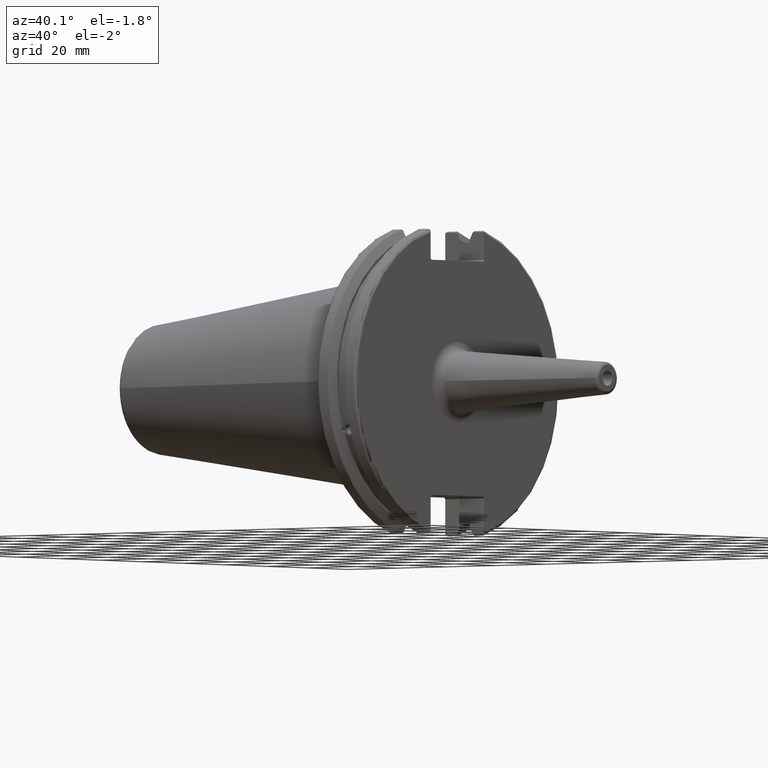
[diagram: clean part render]
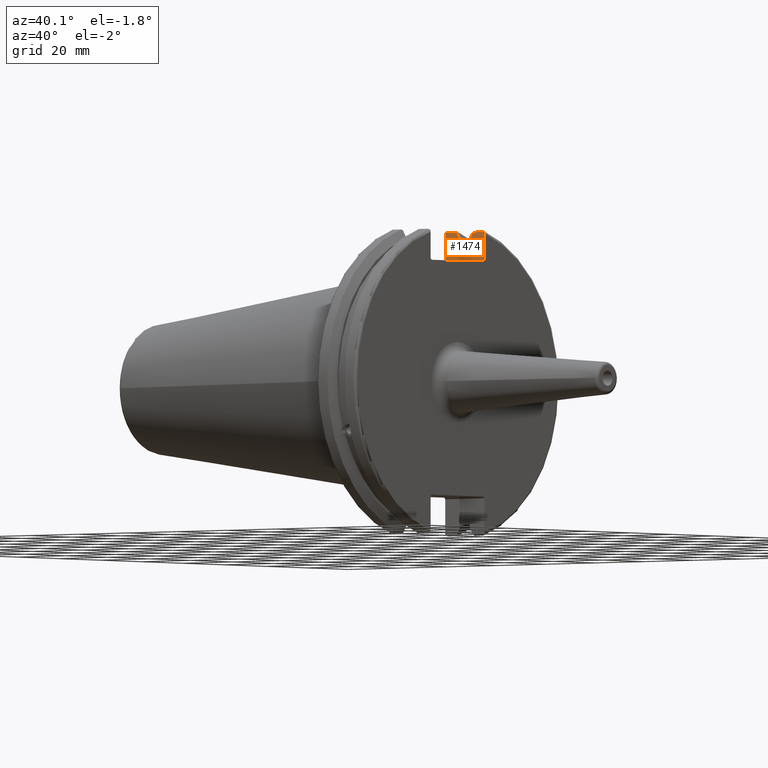
[diagram: same view with one face highlighted and labeled with its STEP entity id]
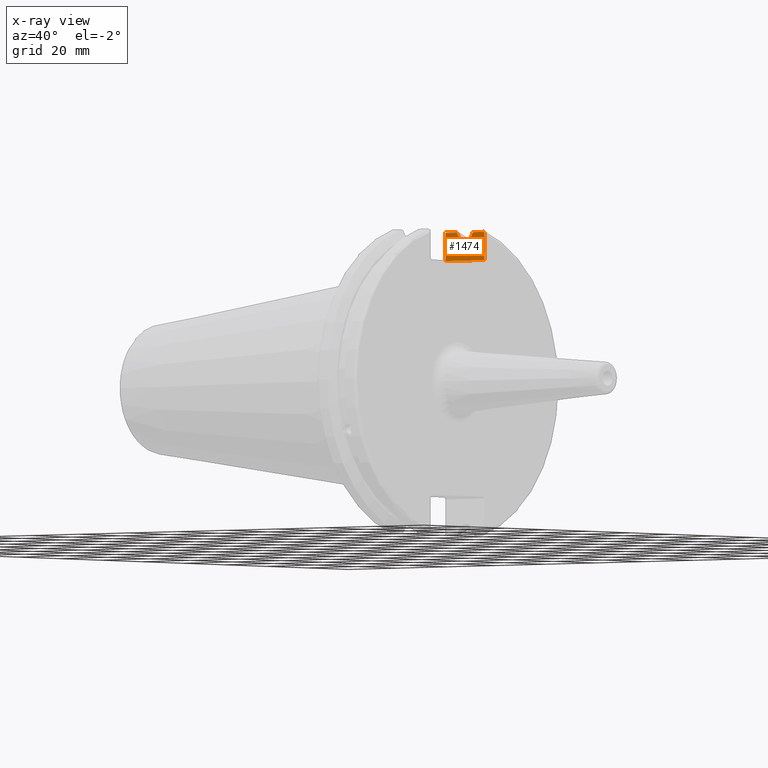
[diagram: x-ray of the same camera — body ghosted, the highlighted face saturated]
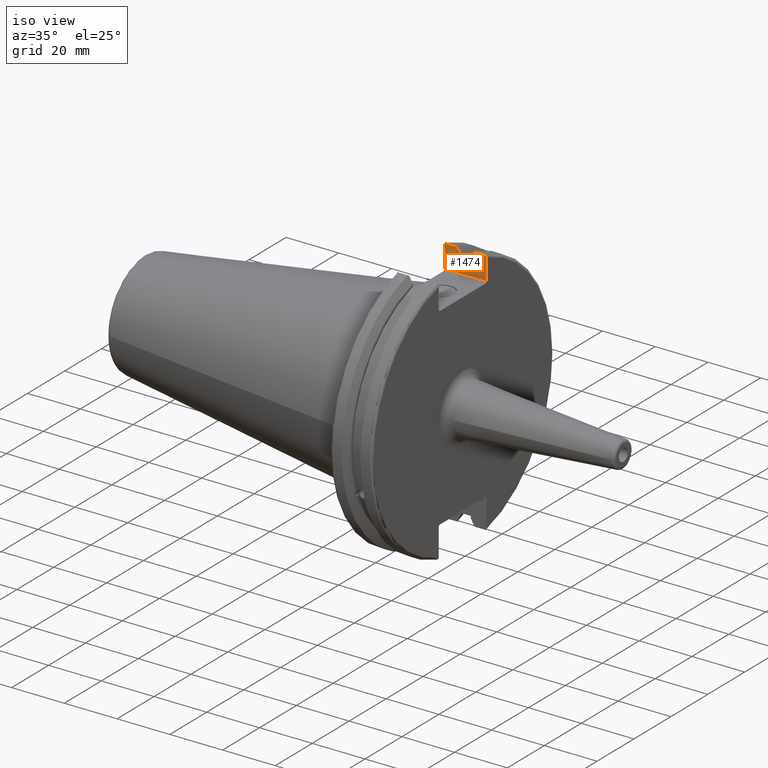
[diagram: same view with one face highlighted and labeled with its STEP entity id]
A machine part, auxiliary view. The second image highlights one B-rep face of the part: STEP entity #1474.
The next image is the same camera in x-ray: the body ghosted, the highlighted face saturated — about 0% of this face is hidden behind the body in this view.
A second angle (iso view) of the same face is appended — the face is thin or edge-on in the first view.
In plain terms, the highlighted planar face has unit normal (0, 1, 0).
Its self-contained STEP definition (entity closure, byte-faithful):
#22=(
BOUNDED_CURVE()
B_SPLINE_CURVE(2,(#2657,#2658,#2659),.UNSPECIFIED.,.F.,.F.)
B_SPLINE_CURVE_WITH_KNOTS((3,3),(0.0558332664491378,0.331657177124507),
 .UNSPECIFIED.)
CURVE()
GEOMETRIC_REPRESENTATION_ITEM()
RATIONAL_B_SPLINE_CURVE((1.00012873637135,1.00038235575519,1.))
REPRESENTATION_ITEM('')
);
#29=(
BOUNDED_CURVE()
B_SPLINE_CURVE(2,(#2943,#2944,#2945),.UNSPECIFIED.,.F.,.F.)
B_SPLINE_CURVE_WITH_KNOTS((3,3),(0.,0.275823910671402),.UNSPECIFIED.)
CURVE()
GEOMETRIC_REPRESENTATION_ITEM()
RATIONAL_B_SPLINE_CURVE((1.,1.00038235574129,1.00012873636668))
REPRESENTATION_ITEM('')
);
#55=B_SPLINE_CURVE_WITH_KNOTS('',3,(#2728,#2729,#2730,#2731,#2732,#2733),
 .UNSPECIFIED.,.F.,.F.,(4,2,4),(0.0976892167532868,0.112000071948293,0.150881870548587),
 .UNSPECIFIED.);
#70=B_SPLINE_CURVE_WITH_KNOTS('',3,(#2906,#2907,#2908,#2909,#2910,#2911),
 .UNSPECIFIED.,.F.,.F.,(4,2,4),(0.452859340315923,0.491741138916218,0.506051994111224),
 .UNSPECIFIED.);
#139=PLANE('',#1642);
#152=LINE('',#2113,#244);
#199=LINE('',#2710,#291);
#226=LINE('',#2937,#318);
#228=LINE('',#2941,#320);
#229=LINE('',#2947,#321);
#230=LINE('',#2949,#322);
#231=LINE('',#2950,#323);
#232=LINE('',#2951,#324);
#244=VECTOR('',#1714,10.);
#291=VECTOR('',#1903,10.);
#318=VECTOR('',#1998,10.);
#320=VECTOR('',#2002,10.);
#321=VECTOR('',#2003,10.);
#322=VECTOR('',#2004,10.);
#323=VECTOR('',#2005,10.);
#324=VECTOR('',#2006,10.);
#408=FACE_OUTER_BOUND('',#507,.T.);
#507=EDGE_LOOP('',(#1299,#1300,#1301,#1302,#1303,#1304,#1305,#1306,#1307,
#1308,#1309,#1310));
#611=VERTEX_POINT('',#2109);
#613=VERTEX_POINT('',#2112);
#683=VERTEX_POINT('',#2652);
#684=VERTEX_POINT('',#2656);
#701=VERTEX_POINT('',#2707);
#702=VERTEX_POINT('',#2709);
#709=VERTEX_POINT('',#2727);
#731=VERTEX_POINT('',#2886);
#739=VERTEX_POINT('',#2940);
#740=VERTEX_POINT('',#2942);
#741=VERTEX_POINT('',#2946);
#742=VERTEX_POINT('',#2948);
#762=EDGE_CURVE('',#611,#613,#152,.T.);
#853=EDGE_CURVE('',#683,#684,#22,.T.);
#877=EDGE_CURVE('',#701,#702,#199,.T.);
#886=EDGE_CURVE('',#709,#611,#55,.T.);
#927=EDGE_CURVE('',#702,#731,#70,.T.);
#939=EDGE_CURVE('',#613,#701,#226,.T.);
#941=EDGE_CURVE('',#739,#709,#228,.T.);
#942=EDGE_CURVE('',#740,#739,#29,.T.);
#943=EDGE_CURVE('',#741,#740,#229,.T.);
#944=EDGE_CURVE('',#742,#741,#230,.T.);
#945=EDGE_CURVE('',#684,#742,#231,.T.);
#946=EDGE_CURVE('',#731,#683,#232,.T.);
#1299=ORIENTED_EDGE('',*,*,#886,.F.);
#1300=ORIENTED_EDGE('',*,*,#941,.F.);
#1301=ORIENTED_EDGE('',*,*,#942,.F.);
#1302=ORIENTED_EDGE('',*,*,#943,.F.);
#1303=ORIENTED_EDGE('',*,*,#944,.F.);
#1304=ORIENTED_EDGE('',*,*,#945,.F.);
#1305=ORIENTED_EDGE('',*,*,#853,.F.);
#1306=ORIENTED_EDGE('',*,*,#946,.F.);
#1307=ORIENTED_EDGE('',*,*,#927,.F.);
#1308=ORIENTED_EDGE('',*,*,#877,.F.);
#1309=ORIENTED_EDGE('',*,*,#939,.F.);
#1310=ORIENTED_EDGE('',*,*,#762,.F.);
#1474=ADVANCED_FACE('',(#408),#139,.F.);
#1642=AXIS2_PLACEMENT_3D('',#2939,#2000,#2001);
#1714=DIRECTION('',(0.,0.,-1.));
#1903=DIRECTION('',(0.,0.,1.));
#1998=DIRECTION('',(-1.,0.,0.));
#2000=DIRECTION('center_axis',(0.,1.,0.));
#2001=DIRECTION('ref_axis',(-1.,0.,0.));
#2002=DIRECTION('',(1.,0.,0.));
#2003=DIRECTION('',(0.,0.,1.));
#2004=DIRECTION('',(1.,0.,0.));
#2005=DIRECTION('',(0.,0.,-1.));
#2006=DIRECTION('',(1.,0.,0.));
#2109=CARTESIAN_POINT('',(19.05,12.95,46.4407434937254));
#2112=CARTESIAN_POINT('',(19.05,12.95,38.219));
#2113=CARTESIAN_POINT('',(19.05,12.95,18.8595));
#2652=CARTESIAN_POINT('',(7.88638960562424,12.95,46.9780755322918));
#2656=CARTESIAN_POINT('',(9.2191,12.95,44.5791147973604));
#2657=CARTESIAN_POINT('Ctrl Pts',(7.88638960562424,12.95,46.9780755322918));
#2658=CARTESIAN_POINT('Ctrl Pts',(8.57020449055492,12.95,45.7494966802213));
#2659=CARTESIAN_POINT('Ctrl Pts',(9.2191,12.95,44.5791147973604));
#2707=CARTESIAN_POINT('',(3.175,12.95,38.219));
#2709=CARTESIAN_POINT('',(3.175,12.95,46.4407434937254));
#2710=CARTESIAN_POINT('',(3.175,12.95,18.8595));
#2727=CARTESIAN_POINT('',(18.9055020570566,12.95,46.9780755322918));
#2728=CARTESIAN_POINT('Ctrl Pts',(18.9055020570566,12.95,46.9780755322918));
#2729=CARTESIAN_POINT('Ctrl Pts',(18.9315844351616,12.95,46.9333752207329));
#2730=CARTESIAN_POINT('Ctrl Pts',(18.9538432708766,12.95,46.887363294568));
#2731=CARTESIAN_POINT('Ctrl Pts',(19.0204646992875,12.95,46.7230464903732));
#2732=CARTESIAN_POINT('Ctrl Pts',(19.05,12.95,46.5703494890597));
#2733=CARTESIAN_POINT('Ctrl Pts',(19.05,12.95,46.4407434937254));
#2886=CARTESIAN_POINT('',(3.31949794294344,12.95,46.9780755322918));
#2906=CARTESIAN_POINT('Ctrl Pts',(3.175,12.95,46.4407434937254));
#2907=CARTESIAN_POINT('Ctrl Pts',(3.175,12.95,46.5703494890597));
#2908=CARTESIAN_POINT('Ctrl Pts',(3.20453530071253,12.95,46.7230464903732));
#2909=CARTESIAN_POINT('Ctrl Pts',(3.27115672912336,12.95,46.887363294568));
#2910=CARTESIAN_POINT('Ctrl Pts',(3.29341556483839,12.95,46.9333752207329));
#2911=CARTESIAN_POINT('Ctrl Pts',(3.31949794294344,12.95,46.9780755322918));
#2937=CARTESIAN_POINT('',(19.06875,12.95,38.219));
#2939=CARTESIAN_POINT('Origin',(20.05,12.95,37.719));
#2940=CARTESIAN_POINT('',(14.3818103943757,12.95,46.9780755322918));
#2941=CARTESIAN_POINT('',(16.8551045170244,12.95,46.9780755322918));
#2942=CARTESIAN_POINT('',(13.0491,12.95,44.5791147973604));
#2943=CARTESIAN_POINT('Ctrl Pts',(13.0491,12.95,44.5791147973604));
#2944=CARTESIAN_POINT('Ctrl Pts',(13.6979955094846,12.95,45.7494966802924));
#2945=CARTESIAN_POINT('Ctrl Pts',(14.3818103943757,12.95,46.9780755322918));
#2946=CARTESIAN_POINT('',(13.0491,12.95,43.7678716897452));
#2947=CARTESIAN_POINT('',(13.0491,12.95,18.8595));
#2948=CARTESIAN_POINT('',(9.2191,12.95,43.7678716897452));
#2949=CARTESIAN_POINT('',(11.1341,12.95,43.7678716897452));
#2950=CARTESIAN_POINT('',(9.2191,12.95,18.8595));
#2951=CARTESIAN_POINT('',(5.39149548297563,12.95,46.9780755322918));